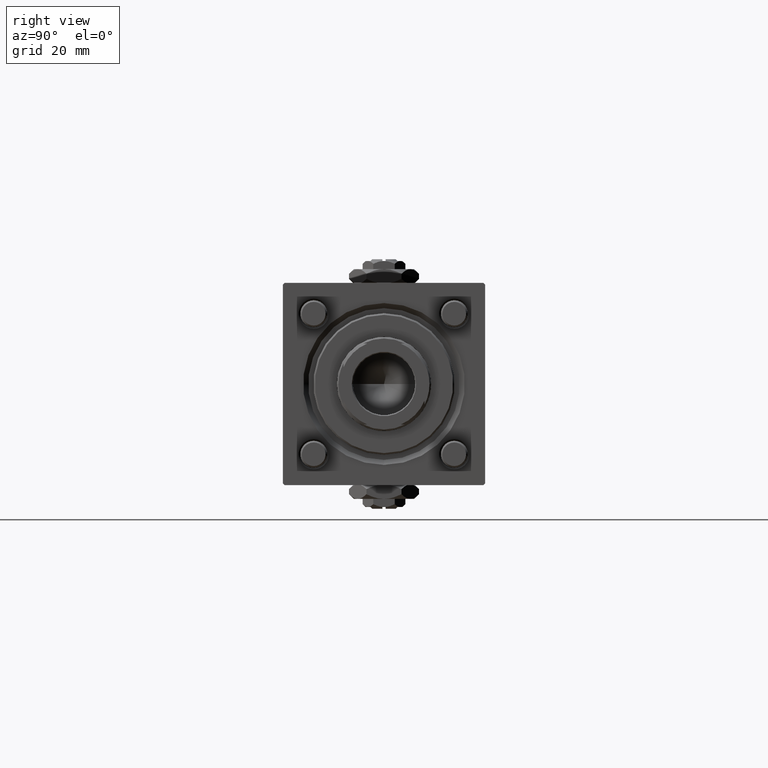
[diagram: clean part render]
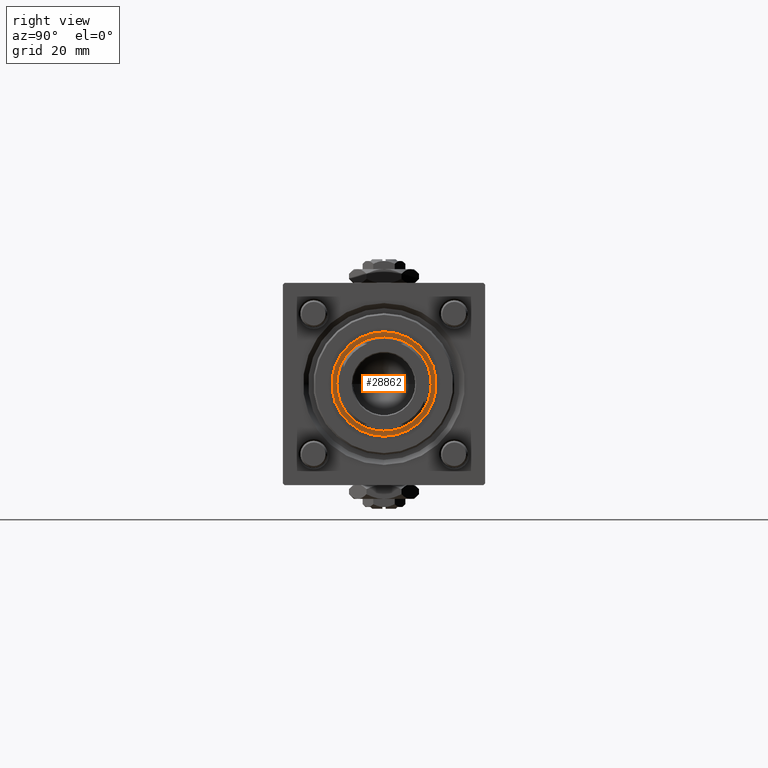
[diagram: same view with one face highlighted and labeled with its STEP entity id]
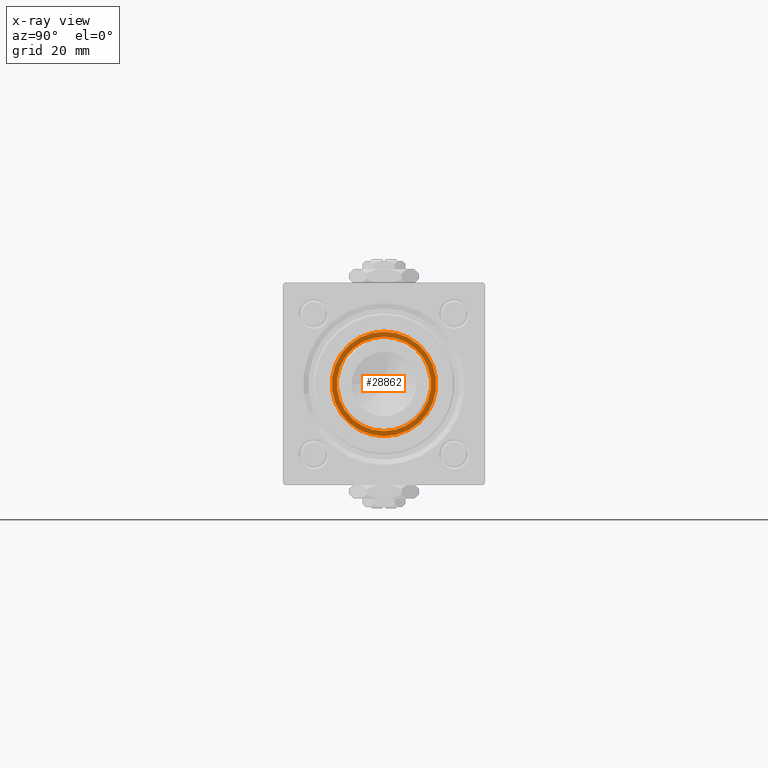
[diagram: x-ray of the same camera — body ghosted, the highlighted face saturated]
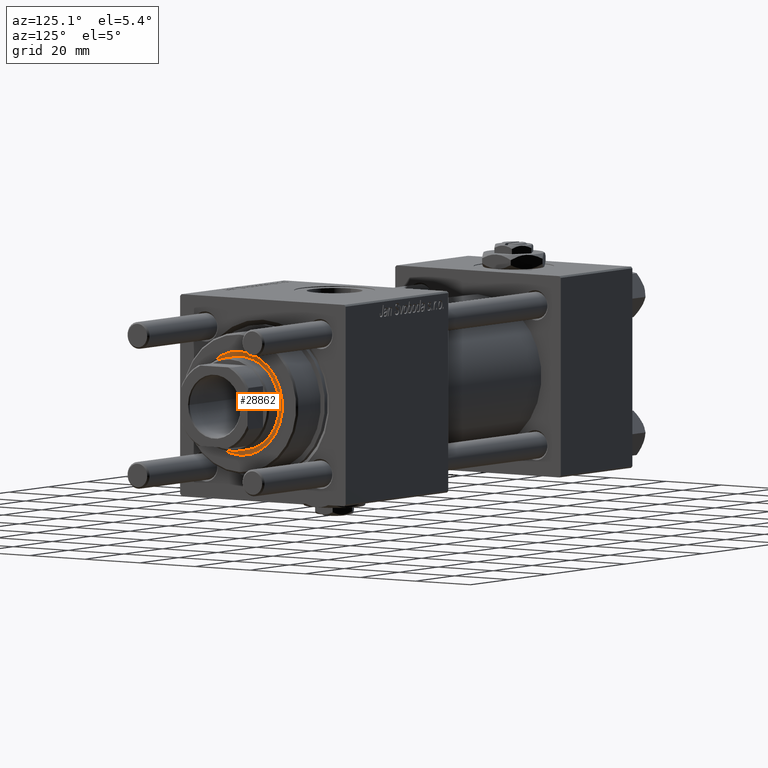
[diagram: same view with one face highlighted and labeled with its STEP entity id]
A machine part, right view. The second image highlights one B-rep face of the part: STEP entity #28862.
The next image is the same camera in x-ray: the body ghosted, the highlighted face saturated — about 0% of this face is hidden behind the body in this view.
A second angle (auxiliary view) of the same face is appended — the face is thin or edge-on in the first view.
In plain terms, the highlighted planar face has unit normal (1, 0, 0).
Its self-contained STEP definition (entity closure, byte-faithful):
#613 = DIRECTION ( 'NONE',  ( 1.000000000000000000, 0.000000000000000000, 0.000000000000000000 ) ) ;
#692 = VERTEX_POINT ( 'NONE', #9506 ) ;
#1401 = CARTESIAN_POINT ( 'NONE',  ( 0.000000000000000000, 0.000000000000000000, 40.20000000000000284 ) ) ;
#3399 = EDGE_LOOP ( 'NONE', ( #39245, #42118 ) ) ;
#4147 = CARTESIAN_POINT ( 'NONE',  ( 0.000000000000000000, 0.000000000000000000, 40.20000000000000284 ) ) ;
#5362 = CIRCLE ( 'NONE', #26273, 14.00000000000000178 ) ;
#5978 = DIRECTION ( 'NONE',  ( 0.000000000000000000, 0.000000000000000000, 1.000000000000000000 ) ) ;
#6001 = CIRCLE ( 'NONE', #19355, 14.00000000000000178 ) ;
#9506 = CARTESIAN_POINT ( 'NONE',  ( 15.50000000000000000, 0.000000000000000000, 40.20000000000000284 ) ) ;
#10954 = CARTESIAN_POINT ( 'NONE',  ( -15.50000000000000000, 1.898202538678397557E-15, 40.20000000000000284 ) ) ;
#12028 = EDGE_CURVE ( 'NONE', #692, #15345, #12406, .T. ) ;
#12406 = CIRCLE ( 'NONE', #36197, 15.50000000000000000 ) ;
#12791 = FACE_BOUND ( 'NONE', #46291, .T. ) ;
#14235 = VERTEX_POINT ( 'NONE', #38522 ) ;
#14439 = CARTESIAN_POINT ( 'NONE',  ( 0.000000000000000000, 0.000000000000000000, 40.20000000000000284 ) ) ;
#15214 = CARTESIAN_POINT ( 'NONE',  ( 0.000000000000000000, 0.000000000000000000, 40.20000000000000284 ) ) ;
#15345 = VERTEX_POINT ( 'NONE', #10954 ) ;
#18142 = PLANE ( 'NONE',  #44405 ) ;
#18247 = EDGE_CURVE ( 'NONE', #15345, #692, #57520, .T. ) ;
#18984 = DIRECTION ( 'NONE',  ( -0.000000000000000000, -0.000000000000000000, -1.000000000000000000 ) ) ;
#19355 = AXIS2_PLACEMENT_3D ( 'NONE', #14439, #51337, #37335 ) ;
#26273 = AXIS2_PLACEMENT_3D ( 'NONE', #35150, #18984, #27618 ) ;
#26843 = EDGE_CURVE ( 'NONE', #56478, #14235, #5362, .T. ) ;
#27618 = DIRECTION ( 'NONE',  ( 1.000000000000000000, 0.000000000000000000, 0.000000000000000000 ) ) ;
#27882 = CARTESIAN_POINT ( 'NONE',  ( 14.00000000000000178, 0.000000000000000000, 40.20000000000000284 ) ) ;
#28862 = ADVANCED_FACE ( 'NONE', ( #58910, #12791 ), #18142, .T. ) ;
#29013 = AXIS2_PLACEMENT_3D ( 'NONE', #1401, #56776, #29380 ) ;
#29380 = DIRECTION ( 'NONE',  ( 1.000000000000000000, 0.000000000000000000, 0.000000000000000000 ) ) ;
#31224 = DIRECTION ( 'NONE',  ( 0.000000000000000000, 0.000000000000000000, 1.000000000000000000 ) ) ;
#35150 = CARTESIAN_POINT ( 'NONE',  ( 0.000000000000000000, 0.000000000000000000, 40.20000000000000284 ) ) ;
#36197 = AXIS2_PLACEMENT_3D ( 'NONE', #15214, #5978, #613 ) ;
#37335 = DIRECTION ( 'NONE',  ( 1.000000000000000000, 0.000000000000000000, 0.000000000000000000 ) ) ;
#38522 = CARTESIAN_POINT ( 'NONE',  ( -14.00000000000000178, 1.714505518806294835E-15, 40.20000000000000284 ) ) ;
#39245 = ORIENTED_EDGE ( 'NONE', *, *, #12028, .T. ) ;
#42118 = ORIENTED_EDGE ( 'NONE', *, *, #18247, .T. ) ;
#42922 = ORIENTED_EDGE ( 'NONE', *, *, #26843, .T. ) ;
#44405 = AXIS2_PLACEMENT_3D ( 'NONE', #4147, #31224, #58332 ) ;
#45068 = ORIENTED_EDGE ( 'NONE', *, *, #50879, .T. ) ;
#46291 = EDGE_LOOP ( 'NONE', ( #42922, #45068 ) ) ;
#50879 = EDGE_CURVE ( 'NONE', #14235, #56478, #6001, .T. ) ;
#51337 = DIRECTION ( 'NONE',  ( -0.000000000000000000, -0.000000000000000000, -1.000000000000000000 ) ) ;
#56478 = VERTEX_POINT ( 'NONE', #27882 ) ;
#56776 = DIRECTION ( 'NONE',  ( 0.000000000000000000, 0.000000000000000000, 1.000000000000000000 ) ) ;
#57520 = CIRCLE ( 'NONE', #29013, 15.50000000000000000 ) ;
#58332 = DIRECTION ( 'NONE',  ( 1.000000000000000000, 0.000000000000000000, -0.000000000000000000 ) ) ;
#58910 = FACE_OUTER_BOUND ( 'NONE', #3399, .T. ) ;